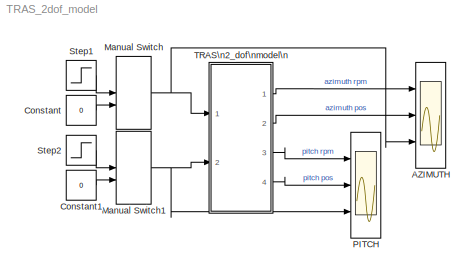
MODEL TRAS_2dof_model
KIND model
CONFIG PreLoadFcn = load tras_char
BLOCK [Scope] AZIMUTH
  DataFormat = StructureWithTime
  Floating = off
  NumInputPorts = 3
  Ports = [3]
  SID = 1
  SampleTime = 0
  ShowLegends = off
  TimeRange = 20
  YMax = 10000~10~1
  YMin = -10000~-10~0
BLOCK [Constant] Constant
  SID = 2
  Value = 0
BLOCK [Constant] Constant1
  SID = 3
  Value = 0
BLOCK [ManualSwitch] Manual Switch
  SID = 4
BLOCK [ManualSwitch] Manual Switch1
  SID = 5
BLOCK [Scope] PITCH
  DataFormat = StructureWithTime
  Floating = off
  NumInputPorts = 3
  Ports = [3]
  SID = 6
  SampleTime = 0
  SaveName = ScopeData1
  ShowLegends = off
  TimeRange = 20
  YMax = 5000~1~1
  YMin = -5000~-1~0
BLOCK [Step] Step1
  SID = 7
  SampleTime = 0
BLOCK [Step] Step2
  SID = 8
  SampleTime = 0
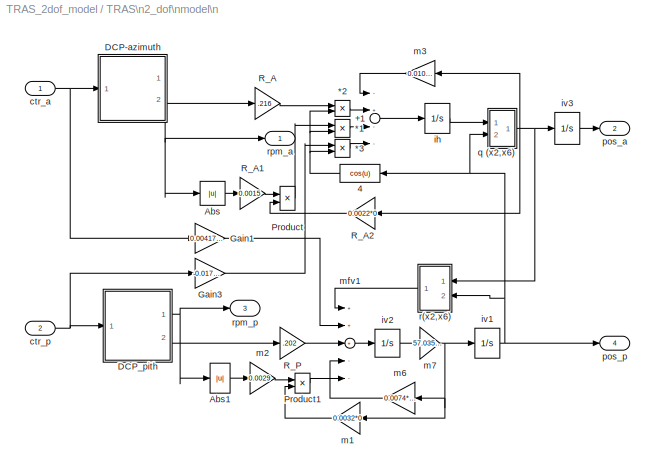
BLOCK [SubSystem] TRAS\n2_dof\nmodel\n
  FunctionWithSeparateData = off
  MaskHideContents = off
  MinAlgLoopOccurrences = off
  Opaque = off
  Ports = [2, 4]
  PropExecContextOutsideSubsystem = off
  RTWSystemCode = Auto
  RequestExecContextInheritance = off
  SID = 9
BLOCK [Product] TRAS\n2_dof\nmodel\n/*1
  Ports = [2, 1]
  RndMeth = Floor
  SID = 12
BLOCK [Product] TRAS\n2_dof\nmodel\n/*2
  Ports = [2, 1]
  RndMeth = Floor
  SID = 13
BLOCK [Product] TRAS\n2_dof\nmodel\n/*3
  Ports = [2, 1]
  RndMeth = Floor
  SID = 14
BLOCK [Sum] TRAS\n2_dof\nmodel\n/+1
  Inputs = -+--
  Ports = [4, 1]
  SID = 15
BLOCK [Fcn] TRAS\n2_dof\nmodel\n/4
  Expr = cos(u)
  SID = 16
BLOCK [Abs] TRAS\n2_dof\nmodel\n/Abs
  SID = 17
BLOCK [Abs] TRAS\n2_dof\nmodel\n/Abs1
  SID = 18
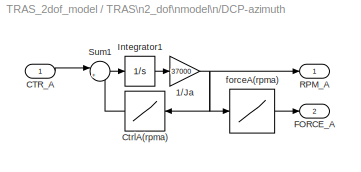
BLOCK [SubSystem] TRAS\n2_dof\nmodel\n/DCP-azimuth
  FunctionWithSeparateData = off
  MaskHideContents = off
  MinAlgLoopOccurrences = off
  Opaque = off
  Ports = [1, 2]
  PropExecContextOutsideSubsystem = off
  RTWSystemCode = Auto
  RequestExecContextInheritance = off
  SID = 19
BLOCK [Gain] TRAS\n2_dof\nmodel\n/DCP-azimuth/1//Ja
  Gain = 37000
  SID = 21
BLOCK [Inport] TRAS\n2_dof\nmodel\n/DCP-azimuth/CTR_A
  IconDisplay = Port number
  SID = 20
BLOCK [Lookup] TRAS\n2_dof\nmodel\n/DCP-azimuth/CtrlA(rpma)
  InputValues = rpm_a
  SID = 22
  Table = control_a
BLOCK [Outport] TRAS\n2_dof\nmodel\n/DCP-azimuth/FORCE_A
  IconDisplay = Port number
  Port = 2
  SID = 27
BLOCK [Integrator] TRAS\n2_dof\nmodel\n/DCP-azimuth/Integrator1
  Ports = [1, 1]
  SID = 23
BLOCK [Outport] TRAS\n2_dof\nmodel\n/DCP-azimuth/RPM_A
  IconDisplay = Port number
  SID = 26
BLOCK [Sum] TRAS\n2_dof\nmodel\n/DCP-azimuth/Sum1
  IconShape = round
  Inputs = |+-
  Ports = [2, 1]
  SID = 24
BLOCK [Lookup] TRAS\n2_dof\nmodel\n/DCP-azimuth/forceA(rpma)
  InputValues = rpm_a
  SID = 25
  Table = force_a
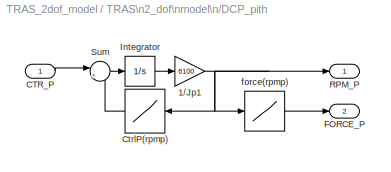
BLOCK [SubSystem] TRAS\n2_dof\nmodel\n/DCP_pith
  FunctionWithSeparateData = off
  MaskHideContents = off
  MinAlgLoopOccurrences = off
  Opaque = off
  Ports = [1, 2]
  PropExecContextOutsideSubsystem = off
  RTWSystemCode = Auto
  RequestExecContextInheritance = off
  SID = 28
BLOCK [Gain] TRAS\n2_dof\nmodel\n/DCP_pith/1//Jp1
  Gain = 6100
  SID = 30
  SaturateOnIntegerOverflow = off
BLOCK [Inport] TRAS\n2_dof\nmodel\n/DCP_pith/CTR_P
  IconDisplay = Port number
  SID = 29
BLOCK [Lookup] TRAS\n2_dof\nmodel\n/DCP_pith/CtrlP(rpmp)
  InputValues = rpm_p
  SID = 31
  Table = control_p
BLOCK [Outport] TRAS\n2_dof\nmodel\n/DCP_pith/FORCE_P
  IconDisplay = Port number
  Port = 2
  SID = 36
BLOCK [Integrator] TRAS\n2_dof\nmodel\n/DCP_pith/Integrator
  Ports = [1, 1]
  SID = 32
BLOCK [Outport] TRAS\n2_dof\nmodel\n/DCP_pith/RPM_P
  IconDisplay = Port number
  SID = 35
BLOCK [Sum] TRAS\n2_dof\nmodel\n/DCP_pith/Sum
  IconShape = round
  Inputs = |+-
  Ports = [2, 1]
  SID = 33
BLOCK [Lookup] TRAS\n2_dof\nmodel\n/DCP_pith/force(rpmp)
  InputValues = rpm_p
  SID = 34
  Table = force_p
BLOCK [Gain] TRAS\n2_dof\nmodel\n/Gain1
  Gain = 0.00417495398545
  SID = 37
BLOCK [Gain] TRAS\n2_dof\nmodel\n/Gain3
  Gain = -0.01782003784180
  SID = 38
BLOCK [Product] TRAS\n2_dof\nmodel\n/Product
  Ports = [2, 1]
  RndMeth = Floor
  SID = 39
BLOCK [Product] TRAS\n2_dof\nmodel\n/Product1
  InputSameDT = off
  Ports = [2, 1]
  RndMeth = Floor
  SID = 40
BLOCK [Gain] TRAS\n2_dof\nmodel\n/R_A
  Gain = .216
  SID = 41
  SaturateOnIntegerOverflow = off
BLOCK [Gain] TRAS\n2_dof\nmodel\n/R_A1
  Gain = 0.0015
  SID = 42
  SaturateOnIntegerOverflow = off
BLOCK [Gain] TRAS\n2_dof\nmodel\n/R_A2
  Gain = 0.0022*0
  SID = 43
  SaturateOnIntegerOverflow = off
BLOCK [Gain] TRAS\n2_dof\nmodel\n/R_P
  Gain = .202
  SID = 44
  SaturateOnIntegerOverflow = off
BLOCK [Inport] TRAS\n2_dof\nmodel\n/ctr_a
  IconDisplay = Port number
  SID = 10
BLOCK [Inport] TRAS\n2_dof\nmodel\n/ctr_p
  IconDisplay = Port number
  Port = 2
  SID = 11
BLOCK [Integrator] TRAS\n2_dof\nmodel\n/ih
  LowerSaturationLimit = -10
  Ports = [1, 1]
  SID = 45
  UpperSaturationLimit = 10
BLOCK [Integrator] TRAS\n2_dof\nmodel\n/iv1
  LimitOutput = on
  LowerSaturationLimit = -pi/2
  Ports = [1, 1]
  SID = 46
  UpperSaturationLimit = pi/2
BLOCK [Integrator] TRAS\n2_dof\nmodel\n/iv2
  LowerSaturationLimit = -pi
  Ports = [1, 1]
  SID = 47
  UpperSaturationLimit = pi
BLOCK [Integrator] TRAS\n2_dof\nmodel\n/iv3
  LimitOutput = on
  LowerSaturationLimit = -6
  Ports = [1, 1]
  SID = 48
  UpperSaturationLimit = 6
BLOCK [Gain] TRAS\n2_dof\nmodel\n/m1
  Gain = 0.0032*0
  SID = 49
BLOCK [Gain] TRAS\n2_dof\nmodel\n/m2
  Gain = 0.0029
  SID = 50
BLOCK [Gain] TRAS\n2_dof\nmodel\n/m3
  Gain = 0.0108*0.4935*1.1051
  SID = 51
  SaturateOnIntegerOverflow = off
BLOCK [Gain] TRAS\n2_dof\nmodel\n/m6
  Gain = 0.0074*1.7175
  SID = 52
  SaturateOnIntegerOverflow = off
BLOCK [Gain] TRAS\n2_dof\nmodel\n/m7
  Gain = 57.0357*0.5833
  SID = 53
BLOCK [Sum] TRAS\n2_dof\nmodel\n/mfv1
  Inputs = +++--
  Ports = [5, 1]
  SID = 54
BLOCK [Outport] TRAS\n2_dof\nmodel\n/pos_a
  IconDisplay = Port number
  Port = 2
  SID = 70
BLOCK [Outport] TRAS\n2_dof\nmodel\n/pos_p
  IconDisplay = Port number
  Port = 4
  SID = 72
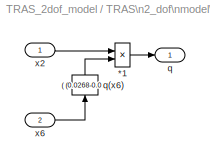
BLOCK [SubSystem] TRAS\n2_dof\nmodel\n/q (x2,x6)
  FunctionWithSeparateData = off
  MaskHideContents = off
  MinAlgLoopOccurrences = off
  Opaque = off
  Ports = [2, 1]
  PropExecContextOutsideSubsystem = off
  RTWSystemCode = Auto
  RequestExecContextInheritance = off
  SID = 55
BLOCK [Fcn] TRAS\n2_dof\nmodel\n/q (x2,x6)/ q(x6)
  Expr = ( (0.0268-0.00300962066650)*cos(u)^2) +0.00300962066650
  SID = 58
BLOCK [Product] TRAS\n2_dof\nmodel\n/q (x2,x6)/*1
  Inputs = */
  Ports = [2, 1]
  RndMeth = Floor
  SID = 59
BLOCK [Outport] TRAS\n2_dof\nmodel\n/q (x2,x6)/q
  IconDisplay = Port number
  SID = 60
BLOCK [Inport] TRAS\n2_dof\nmodel\n/q (x2,x6)/x2
  IconDisplay = Port number
  SID = 56
BLOCK [Inport] TRAS\n2_dof\nmodel\n/q (x2,x6)/x6
  IconDisplay = Port number
  Port = 2
  SID = 57
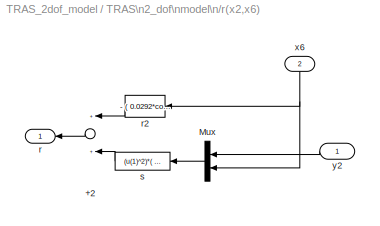
BLOCK [SubSystem] TRAS\n2_dof\nmodel\n/r(x2,x6)
  FunctionWithSeparateData = off
  MaskHideContents = off
  MinAlgLoopOccurrences = off
  Opaque = off
  Ports = [2, 1]
  PropExecContextOutsideSubsystem = off
  RTWSystemCode = Auto
  RequestExecContextInheritance = off
  SID = 61
BLOCK [Sum] TRAS\n2_dof\nmodel\n/r(x2,x6)/+2
  Ports = [2, 1]
  SID = 64
BLOCK [Mux] TRAS\n2_dof\nmodel\n/r(x2,x6)/Mux
  DisplayOption = bar
  Inputs = 2
  Ports = [2, 1]
  SID = 65
BLOCK [Outport] TRAS\n2_dof\nmodel\n/r(x2,x6)/r
  IconDisplay = Port number
  SID = 68
BLOCK [Fcn] TRAS\n2_dof\nmodel\n/r(x2,x6)/r2
  Expr = - ( 0.0292*cos(u)+ 0.0546*sin(u))*1.7143
  SID = 66
BLOCK [Fcn] TRAS\n2_dof\nmodel\n/r(x2,x6)/s
  Expr = (u(1)^2)*(     -0.07389953104162*  0.28753198180218*sin(u(2))*cos(u(2)))
  SID = 67
BLOCK [Inport] TRAS\n2_dof\nmodel\n/r(x2,x6)/x6
  IconDisplay = Port number
  Port = 2
  SID = 63
BLOCK [Inport] TRAS\n2_dof\nmodel\n/r(x2,x6)/y2
  IconDisplay = Port number
  SID = 62
BLOCK [Outport] TRAS\n2_dof\nmodel\n/rpm_a
  IconDisplay = Port number
  SID = 69
BLOCK [Outport] TRAS\n2_dof\nmodel\n/rpm_p
  IconDisplay = Port number
  Port = 3
  SID = 71
LINE Constant1:1 -> Manual Switch1:2
LINE Constant:1 -> Manual Switch:2
NET Manual Switch1:1 -> PITCH:3, TRAS\n2_dof\nmodel\n:2
NET Manual Switch:1 -> AZIMUTH:3, TRAS\n2_dof\nmodel\n:1
LINE Step1:1 -> Manual Switch:1
LINE Step2:1 -> Manual Switch1:1
LINE TRAS\n2_dof\nmodel\n/*1:1 -> TRAS\n2_dof\nmodel\n/+1:3
LINE TRAS\n2_dof\nmodel\n/*2:1 -> TRAS\n2_dof\nmodel\n/+1:2
LINE TRAS\n2_dof\nmodel\n/*3:1 -> TRAS\n2_dof\nmodel\n/+1:4
LINE TRAS\n2_dof\nmodel\n/+1:1 -> TRAS\n2_dof\nmodel\n/ih:1
NET TRAS\n2_dof\nmodel\n/4:1 -> TRAS\n2_dof\nmodel\n/*1:2, TRAS\n2_dof\nmodel\n/*2:2, TRAS\n2_dof\nmodel\n/*3:2
LINE TRAS\n2_dof\nmodel\n/Abs1:1 -> TRAS\n2_dof\nmodel\n/m2:1
LINE TRAS\n2_dof\nmodel\n/Abs:1 -> TRAS\n2_dof\nmodel\n/R_A1:1
NET TRAS\n2_dof\nmodel\n/DCP-azimuth/1//Ja:1 -> TRAS\n2_dof\nmodel\n/DCP-azimuth/CtrlA(rpma):1, TRAS\n2_dof\nmodel\n/DCP-azimuth/RPM_A:1, TRAS\n2_dof\nmodel\n/DCP-azimuth/forceA(rpma):1
LINE TRAS\n2_dof\nmodel\n/DCP-azimuth/CTR_A:1 -> TRAS\n2_dof\nmodel\n/DCP-azimuth/Sum1:1
LINE TRAS\n2_dof\nmodel\n/DCP-azimuth/CtrlA(rpma):1 -> TRAS\n2_dof\nmodel\n/DCP-azimuth/Sum1:2
LINE TRAS\n2_dof\nmodel\n/DCP-azimuth/Integrator1:1 -> TRAS\n2_dof\nmodel\n/DCP-azimuth/1//Ja:1
LINE TRAS\n2_dof\nmodel\n/DCP-azimuth/Sum1:1 -> TRAS\n2_dof\nmodel\n/DCP-azimuth/Integrator1:1
LINE TRAS\n2_dof\nmodel\n/DCP-azimuth/forceA(rpma):1 -> TRAS\n2_dof\nmodel\n/DCP-azimuth/FORCE_A:1
NET TRAS\n2_dof\nmodel\n/DCP-azimuth:1 -> TRAS\n2_dof\nmodel\n/Abs:1, TRAS\n2_dof\nmodel\n/rpm_a:1
LINE TRAS\n2_dof\nmodel\n/DCP-azimuth:2 -> TRAS\n2_dof\nmodel\n/R_A:1
NET TRAS\n2_dof\nmodel\n/DCP_pith/1//Jp1:1 -> TRAS\n2_dof\nmodel\n/DCP_pith/CtrlP(rpmp):1, TRAS\n2_dof\nmodel\n/DCP_pith/RPM_P:1, TRAS\n2_dof\nmodel\n/DCP_pith/force(rpmp):1
LINE TRAS\n2_dof\nmodel\n/DCP_pith/CTR_P:1 -> TRAS\n2_dof\nmodel\n/DCP_pith/Sum:1
LINE TRAS\n2_dof\nmodel\n/DCP_pith/CtrlP(rpmp):1 -> TRAS\n2_dof\nmodel\n/DCP_pith/Sum:2
LINE TRAS\n2_dof\nmodel\n/DCP_pith/Integrator:1 -> TRAS\n2_dof\nmodel\n/DCP_pith/1//Jp1:1
LINE TRAS\n2_dof\nmodel\n/DCP_pith/Sum:1 -> TRAS\n2_dof\nmodel\n/DCP_pith/Integrator:1
LINE TRAS\n2_dof\nmodel\n/DCP_pith/force(rpmp):1 -> TRAS\n2_dof\nmodel\n/DCP_pith/FORCE_P:1
NET TRAS\n2_dof\nmodel\n/DCP_pith:1 -> TRAS\n2_dof\nmodel\n/Abs1:1, TRAS\n2_dof\nmodel\n/rpm_p:1
LINE TRAS\n2_dof\nmodel\n/DCP_pith:2 -> TRAS\n2_dof\nmodel\n/R_P:1
LINE TRAS\n2_dof\nmodel\n/Gain1:1 -> TRAS\n2_dof\nmodel\n/mfv1:2
LINE TRAS\n2_dof\nmodel\n/Gain3:1 -> TRAS\n2_dof\nmodel\n/*3:1
LINE TRAS\n2_dof\nmodel\n/Product1:1 -> TRAS\n2_dof\nmodel\n/mfv1:5
LINE TRAS\n2_dof\nmodel\n/Product:1 -> TRAS\n2_dof\nmodel\n/*1:1
LINE TRAS\n2_dof\nmodel\n/R_A1:1 -> TRAS\n2_dof\nmodel\n/Product:1
LINE TRAS\n2_dof\nmodel\n/R_A2:1 -> TRAS\n2_dof\nmodel\n/Product:2
LINE TRAS\n2_dof\nmodel\n/R_A:1 -> TRAS\n2_dof\nmodel\n/*2:1
LINE TRAS\n2_dof\nmodel\n/R_P:1 -> TRAS\n2_dof\nmodel\n/mfv1:3
NET TRAS\n2_dof\nmodel\n/ctr_a:1 -> TRAS\n2_dof\nmodel\n/DCP-azimuth:1, TRAS\n2_dof\nmodel\n/Gain1:1
NET TRAS\n2_dof\nmodel\n/ctr_p:1 -> TRAS\n2_dof\nmodel\n/DCP_pith:1, TRAS\n2_dof\nmodel\n/Gain3:1
LINE TRAS\n2_dof\nmodel\n/ih:1 -> TRAS\n2_dof\nmodel\n/q (x2,x6):1
NET TRAS\n2_dof\nmodel\n/iv1:1 -> TRAS\n2_dof\nmodel\n/4:1, TRAS\n2_dof\nmodel\n/pos_p:1, TRAS\n2_dof\nmodel\n/q (x2,x6):2, TRAS\n2_dof\nmodel\n/r(x2,x6):2
LINE TRAS\n2_dof\nmodel\n/iv2:1 -> TRAS\n2_dof\nmodel\n/m7:1
LINE TRAS\n2_dof\nmodel\n/iv3:1 -> TRAS\n2_dof\nmodel\n/pos_a:1
LINE TRAS\n2_dof\nmodel\n/m1:1 -> TRAS\n2_dof\nmodel\n/Product1:2
LINE TRAS\n2_dof\nmodel\n/m2:1 -> TRAS\n2_dof\nmodel\n/Product1:1
LINE TRAS\n2_dof\nmodel\n/m3:1 -> TRAS\n2_dof\nmodel\n/+1:1
LINE TRAS\n2_dof\nmodel\n/m6:1 -> TRAS\n2_dof\nmodel\n/mfv1:4
NET TRAS\n2_dof\nmodel\n/m7:1 -> TRAS\n2_dof\nmodel\n/iv1:1, TRAS\n2_dof\nmodel\n/m1:1, TRAS\n2_dof\nmodel\n/m6:1
LINE TRAS\n2_dof\nmodel\n/mfv1:1 -> TRAS\n2_dof\nmodel\n/iv2:1
LINE TRAS\n2_dof\nmodel\n/q (x2,x6)/ q(x6):1 -> TRAS\n2_dof\nmodel\n/q (x2,x6)/*1:2
LINE TRAS\n2_dof\nmodel\n/q (x2,x6)/*1:1 -> TRAS\n2_dof\nmodel\n/q (x2,x6)/q:1
LINE TRAS\n2_dof\nmodel\n/q (x2,x6)/x2:1 -> TRAS\n2_dof\nmodel\n/q (x2,x6)/*1:1
LINE TRAS\n2_dof\nmodel\n/q (x2,x6)/x6:1 -> TRAS\n2_dof\nmodel\n/q (x2,x6)/ q(x6):1
NET TRAS\n2_dof\nmodel\n/q (x2,x6):1 -> TRAS\n2_dof\nmodel\n/R_A2:1, TRAS\n2_dof\nmodel\n/iv3:1, TRAS\n2_dof\nmodel\n/m3:1, TRAS\n2_dof\nmodel\n/r(x2,x6):1
LINE TRAS\n2_dof\nmodel\n/r(x2,x6)/+2:1 -> TRAS\n2_dof\nmodel\n/r(x2,x6)/r:1
LINE TRAS\n2_dof\nmodel\n/r(x2,x6)/Mux:1 -> TRAS\n2_dof\nmodel\n/r(x2,x6)/s:1
LINE TRAS\n2_dof\nmodel\n/r(x2,x6)/r2:1 -> TRAS\n2_dof\nmodel\n/r(x2,x6)/+2:1
LINE TRAS\n2_dof\nmodel\n/r(x2,x6)/s:1 -> TRAS\n2_dof\nmodel\n/r(x2,x6)/+2:2
NET TRAS\n2_dof\nmodel\n/r(x2,x6)/x6:1 -> TRAS\n2_dof\nmodel\n/r(x2,x6)/Mux:2, TRAS\n2_dof\nmodel\n/r(x2,x6)/r2:1
LINE TRAS\n2_dof\nmodel\n/r(x2,x6)/y2:1 -> TRAS\n2_dof\nmodel\n/r(x2,x6)/Mux:1
LINE TRAS\n2_dof\nmodel\n/r(x2,x6):1 -> TRAS\n2_dof\nmodel\n/mfv1:1
LINE TRAS\n2_dof\nmodel\n:1 -> AZIMUTH:1
LINE TRAS\n2_dof\nmodel\n:2 -> AZIMUTH:2
LINE TRAS\n2_dof\nmodel\n:3 -> PITCH:1
LINE TRAS\n2_dof\nmodel\n:4 -> PITCH:2
note: NET lines group one-source signal fan-out (src -> all destinations, sorted); 1:1 wires keep LINE
